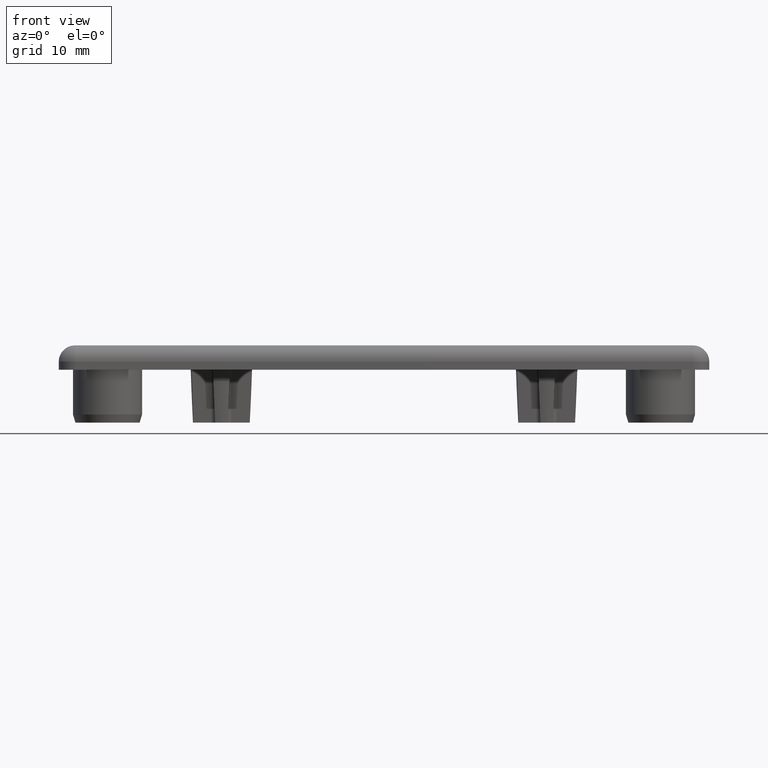
[diagram: clean part render]
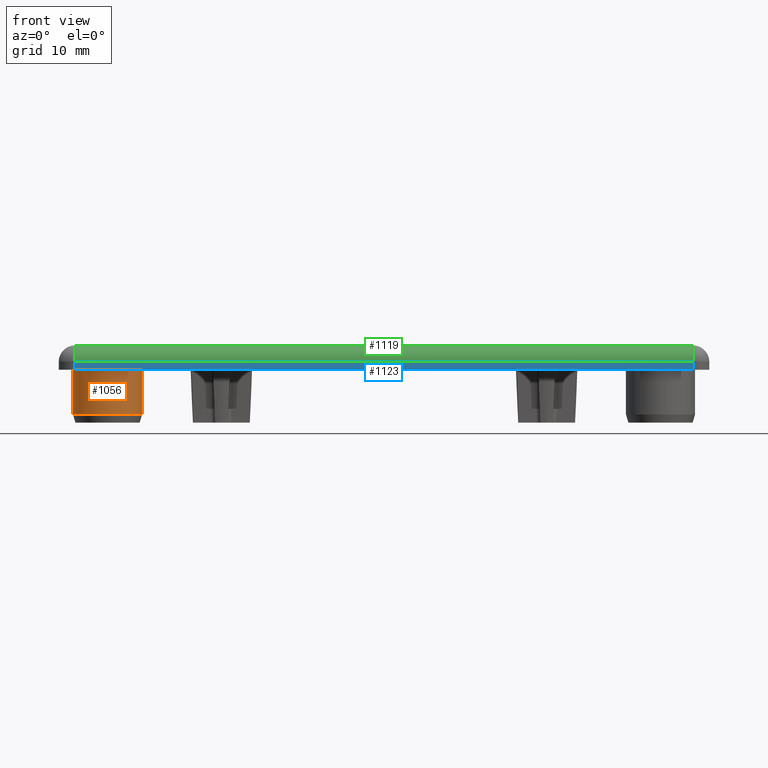
[diagram: same view with three faces highlighted in distinct colors, each labeled with its STEP entity id]
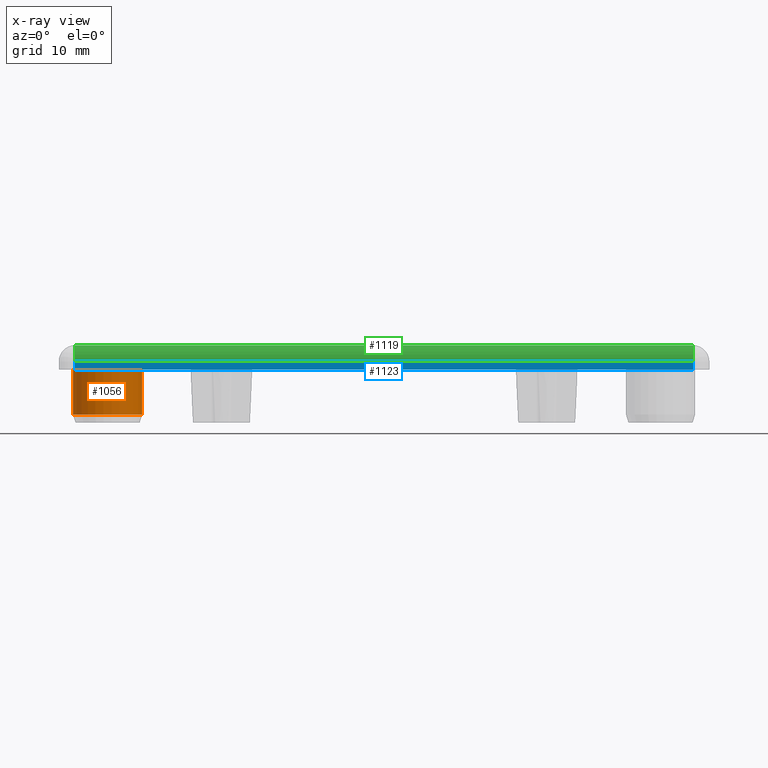
[diagram: x-ray of the same camera — body ghosted, the three highlighted faces saturated]
A machine part, front view with three faces highlighted in distinct colors.
The next image is the same camera in x-ray (body ghosted, the three faces saturated) — at least one of them is partly hidden behind the body in this view.
Their STEP definitions:

[orange] entity #1056 — the highlighted cylindrical surface (bore or boss wall) has radius 4.25 mm, axis along (0, 0, 1).
#203=CYLINDRICAL_SURFACE('',#1132,4.25);
#220=FACE_BOUND('',#316,.T.);
#242=FACE_OUTER_BOUND('',#315,.T.);
#315=EDGE_LOOP('',(#733));
#316=EDGE_LOOP('',(#734));
#407=CIRCLE('',#1130,4.25);
#409=CIRCLE('',#1133,4.25);
#475=VERTEX_POINT('',#1621);
#477=VERTEX_POINT('',#1626);
#579=EDGE_CURVE('',#475,#475,#407,.T.);
#581=EDGE_CURVE('',#477,#477,#409,.T.);
#733=ORIENTED_EDGE('',*,*,#581,.F.);
#734=ORIENTED_EDGE('',*,*,#579,.F.);
#1056=ADVANCED_FACE('',(#242,#220),#203,.T.);
#1130=AXIS2_PLACEMENT_3D('',#1622,#1273,#1274);
#1132=AXIS2_PLACEMENT_3D('',#1625,#1277,#1278);
#1133=AXIS2_PLACEMENT_3D('',#1627,#1279,#1280);
#1273=DIRECTION('center_axis',(0.,0.,-1.));
#1274=DIRECTION('ref_axis',(-1.,0.,0.));
#1277=DIRECTION('center_axis',(0.,0.,1.));
#1278=DIRECTION('ref_axis',(-1.,0.,0.));
#1279=DIRECTION('center_axis',(0.,0.,1.));
#1280=DIRECTION('ref_axis',(-1.,0.,0.));
#1621=CARTESIAN_POINT('',(-29.75,-14.,-5.5));
#1622=CARTESIAN_POINT('Origin',(-34.,-14.,-5.5));
#1625=CARTESIAN_POINT('Origin',(-34.,-14.,-6.5));
#1626=CARTESIAN_POINT('',(-29.75,-14.,0.));
#1627=CARTESIAN_POINT('Origin',(-34.,-14.,0.));

[blue] entity #1123 — the highlighted planar face has unit normal (0, -1, 0).
#41=LINE('',#1703,#109);
#97=LINE('',#1959,#165);
#98=LINE('',#1967,#166);
#100=LINE('',#1970,#168);
#109=VECTOR('',#1369,76.);
#165=VECTOR('',#1587,1.);
#166=VECTOR('',#1598,1.);
#168=VECTOR('',#1602,76.);
#199=PLANE('',#1265);
#309=FACE_OUTER_BOUND('',#403,.T.);
#403=EDGE_LOOP('',(#1022,#1023,#1024,#1025));
#504=VERTEX_POINT('',#1700);
#505=VERTEX_POINT('',#1702);
#576=VERTEX_POINT('',#1954);
#578=VERTEX_POINT('',#1963);
#609=EDGE_CURVE('',#504,#505,#41,.T.);
#722=EDGE_CURVE('',#576,#504,#97,.T.);
#726=EDGE_CURVE('',#505,#578,#98,.T.);
#728=EDGE_CURVE('',#578,#576,#100,.T.);
#1022=ORIENTED_EDGE('',*,*,#722,.F.);
#1023=ORIENTED_EDGE('',*,*,#728,.F.);
#1024=ORIENTED_EDGE('',*,*,#726,.F.);
#1025=ORIENTED_EDGE('',*,*,#609,.F.);
#1123=ADVANCED_FACE('',(#309),#199,.T.);
#1265=AXIS2_PLACEMENT_3D('',#1976,#1611,#1612);
#1369=DIRECTION('',(-1.,-1.11022302462516E-16,0.));
#1587=DIRECTION('',(0.,0.,-1.));
#1598=DIRECTION('',(0.,0.,1.));
#1602=DIRECTION('',(1.,1.11022302462516E-16,0.));
#1611=DIRECTION('center_axis',(1.11022302462516E-16,-1.,0.));
#1612=DIRECTION('ref_axis',(1.,0.,0.));
#1700=CARTESIAN_POINT('',(38.,-20.,0.));
#1702=CARTESIAN_POINT('',(-38.,-20.,0.));
#1703=CARTESIAN_POINT('',(40.,-20.,0.));
#1954=CARTESIAN_POINT('',(38.,-20.,1.));
#1959=CARTESIAN_POINT('',(38.,-20.,0.));
#1963=CARTESIAN_POINT('',(-38.,-20.,1.));
#1967=CARTESIAN_POINT('',(-38.,-20.,0.));
#1970=CARTESIAN_POINT('',(-20.,-20.,1.));
#1976=CARTESIAN_POINT('Origin',(-40.,-20.,0.));

[green] entity #1119 — the highlighted cylindrical surface (edge-blend (fillet) strip) has radius 2 mm, axis along (1, 0, 0).
#39=LINE('',#1693,#107);
#100=LINE('',#1970,#168);
#107=VECTOR('',#1361,76.);
#168=VECTOR('',#1602,76.);
#216=CYLINDRICAL_SURFACE('',#1261,2.);
#305=FACE_OUTER_BOUND('',#399,.T.);
#399=EDGE_LOOP('',(#1006,#1007,#1008,#1009));
#470=CIRCLE('',#1253,2.);
#474=CIRCLE('',#1259,2.);
#496=VERTEX_POINT('',#1681);
#500=VERTEX_POINT('',#1691);
#576=VERTEX_POINT('',#1954);
#578=VERTEX_POINT('',#1963);
#605=EDGE_CURVE('',#496,#500,#39,.T.);
#719=EDGE_CURVE('',#576,#496,#470,.F.);
#725=EDGE_CURVE('',#500,#578,#474,.F.);
#728=EDGE_CURVE('',#578,#576,#100,.T.);
#1006=ORIENTED_EDGE('',*,*,#719,.T.);
#1007=ORIENTED_EDGE('',*,*,#605,.T.);
#1008=ORIENTED_EDGE('',*,*,#725,.T.);
#1009=ORIENTED_EDGE('',*,*,#728,.T.);
#1119=ADVANCED_FACE('',(#305),#216,.T.);
#1253=AXIS2_PLACEMENT_3D('',#1955,#1580,#1581);
#1259=AXIS2_PLACEMENT_3D('',#1965,#1594,#1595);
#1261=AXIS2_PLACEMENT_3D('',#1969,#1600,#1601);
#1361=DIRECTION('',(-1.,-1.11022302462516E-16,0.));
#1580=DIRECTION('center_axis',(1.,0.,0.));
#1581=DIRECTION('ref_axis',(0.,-1.,0.));
#1594=DIRECTION('center_axis',(-1.,-2.22044604925031E-15,0.));
#1595=DIRECTION('ref_axis',(0.,0.,1.));
#1600=DIRECTION('center_axis',(1.,1.11022302462516E-16,0.));
#1601=DIRECTION('ref_axis',(0.,-0.707106781186548,0.707106781186547));
#1602=DIRECTION('',(1.,1.11022302462516E-16,0.));
#1681=CARTESIAN_POINT('',(38.,-18.,3.));
#1691=CARTESIAN_POINT('',(-38.,-18.,3.));
#1693=CARTESIAN_POINT('',(-20.,-18.,3.));
#1954=CARTESIAN_POINT('',(38.,-20.,1.));
#1955=CARTESIAN_POINT('Origin',(38.,-18.,1.));
#1963=CARTESIAN_POINT('',(-38.,-20.,1.));
#1965=CARTESIAN_POINT('Origin',(-38.,-18.,1.));
#1969=CARTESIAN_POINT('Origin',(-20.,-18.,1.));
#1970=CARTESIAN_POINT('',(-20.,-20.,1.));